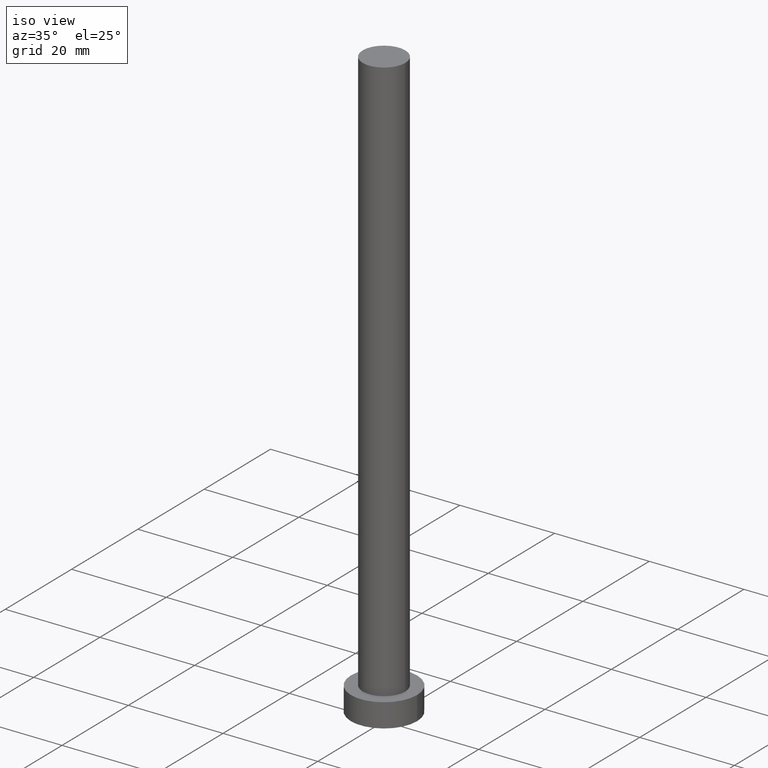
[diagram: clean part render]
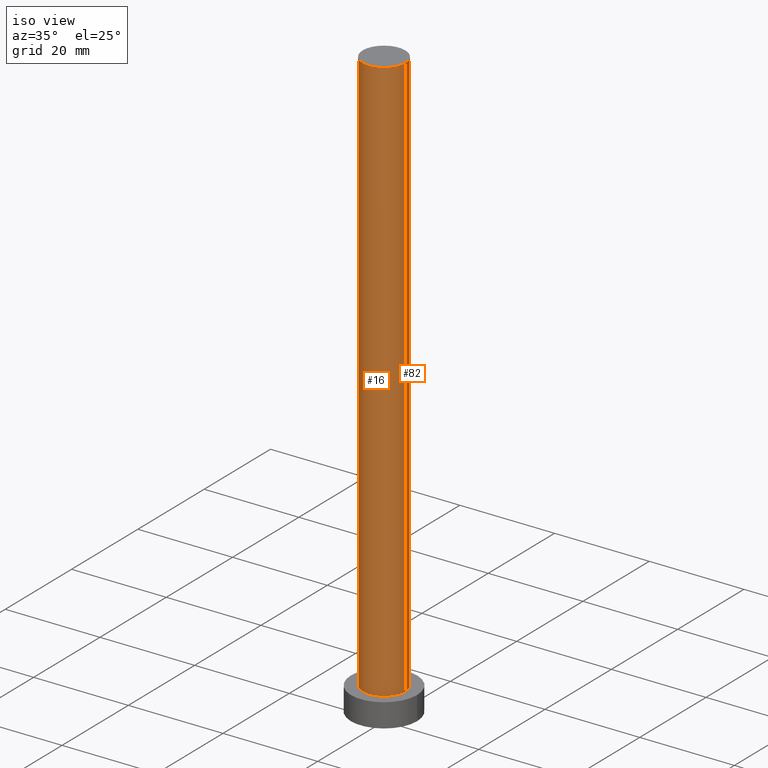
[diagram: same view with one multi-face feature highlighted, each face labeled with its STEP entity id]
A machine part, iso view. The highlighted faces form ONE feature: a constant-radius fillet chain: 2 tangent blend faces with common blend radius 4.5 mm. The faces share edges in the B-rep.
Their STEP definitions:
[1] entity #16 (Cylinder):
#16 = ADVANCED_FACE ( 'NONE', ( #126 ), #125, .T. ) ;
#26 = DIRECTION ( 'NONE',  ( -0.000000000000000000, -0.000000000000000000, -1.000000000000000000 ) ) ;
#42 = CARTESIAN_POINT ( 'NONE',  ( -4.500000000000000888, 0.000000000000000000, 5.000000000000000000 ) ) ;
#47 = CIRCLE ( 'NONE', #131, 4.500000000000000888 ) ;
#51 = DIRECTION ( 'NONE',  ( 1.000000000000000000, 0.000000000000000000, 0.000000000000000000 ) ) ;
#58 = VERTEX_POINT ( 'NONE', #168 ) ;
#60 = EDGE_CURVE ( 'NONE', #215, #78, #206, .T. ) ;
#71 = CARTESIAN_POINT ( 'NONE',  ( 0.000000000000000000, 0.000000000000000000, 125.0000000000000000 ) ) ;
#76 = VERTEX_POINT ( 'NONE', #42 ) ;
#78 = VERTEX_POINT ( 'NONE', #243 ) ;
#86 = CARTESIAN_POINT ( 'NONE',  ( 0.000000000000000000, 0.000000000000000000, 125.0000000000000000 ) ) ;
#87 = EDGE_CURVE ( 'NONE', #76, #78, #47, .T. ) ;
#107 = DIRECTION ( 'NONE',  ( 0.000000000000000000, 0.000000000000000000, 1.000000000000000000 ) ) ;
#124 = DIRECTION ( 'NONE',  ( -0.000000000000000000, -0.000000000000000000, -1.000000000000000000 ) ) ;
#125 = CYLINDRICAL_SURFACE ( 'NONE', #160, 4.500000000000000888 ) ;
#126 = FACE_OUTER_BOUND ( 'NONE', #140, .T. ) ;
#128 = CIRCLE ( 'NONE', #169, 4.500000000000000888 ) ;
#130 = CARTESIAN_POINT ( 'NONE',  ( -4.500000000000000888, 0.000000000000000000, 125.0000000000000000 ) ) ;
#131 = AXIS2_PLACEMENT_3D ( 'NONE', #144, #107, #188 ) ;
#140 = EDGE_LOOP ( 'NONE', ( #157, #254, #150, #181 ) ) ;
#144 = CARTESIAN_POINT ( 'NONE',  ( 0.000000000000000000, 0.000000000000000000, 5.000000000000000000 ) ) ;
#145 = DIRECTION ( 'NONE',  ( -1.000000000000000000, 0.000000000000000000, 0.000000000000000000 ) ) ;
#150 = ORIENTED_EDGE ( 'NONE', *, *, #180, .T. ) ;
#152 = DIRECTION ( 'NONE',  ( 0.000000000000000000, 0.000000000000000000, 1.000000000000000000 ) ) ;
#157 = ORIENTED_EDGE ( 'NONE', *, *, #60, .F. ) ;
#160 = AXIS2_PLACEMENT_3D ( 'NONE', #86, #26, #145 ) ;
#168 = CARTESIAN_POINT ( 'NONE',  ( -4.500000000000000888, 0.000000000000000000, 125.0000000000000000 ) ) ;
#169 = AXIS2_PLACEMENT_3D ( 'NONE', #71, #152, #51 ) ;
#175 = LINE ( 'NONE', #130, #247 ) ;
#180 = EDGE_CURVE ( 'NONE', #58, #76, #175, .T. ) ;
#181 = ORIENTED_EDGE ( 'NONE', *, *, #87, .T. ) ;
#188 = DIRECTION ( 'NONE',  ( 1.000000000000000000, 0.000000000000000000, 0.000000000000000000 ) ) ;
#206 = LINE ( 'NONE', #246, #245 ) ;
#210 = DIRECTION ( 'NONE',  ( -0.000000000000000000, -0.000000000000000000, -1.000000000000000000 ) ) ;
#215 = VERTEX_POINT ( 'NONE', #224 ) ;
#224 = CARTESIAN_POINT ( 'NONE',  ( 4.500000000000000888, 5.510910596163089556E-16, 125.0000000000000000 ) ) ;
#243 = CARTESIAN_POINT ( 'NONE',  ( 4.500000000000000888, 5.510910596163089556E-16, 5.000000000000000000 ) ) ;
#245 = VECTOR ( 'NONE', #124, 1000.000000000000000 ) ;
#246 = CARTESIAN_POINT ( 'NONE',  ( 4.500000000000000888, 5.510910596163089556E-16, 125.0000000000000000 ) ) ;
#247 = VECTOR ( 'NONE', #210, 1000.000000000000000 ) ;
#254 = ORIENTED_EDGE ( 'NONE', *, *, #255, .F. ) ;
#255 = EDGE_CURVE ( 'NONE', #58, #215, #128, .T. ) ;
[2] entity #82 (Cylinder):
#10 = DIRECTION ( 'NONE',  ( 1.000000000000000000, 0.000000000000000000, 0.000000000000000000 ) ) ;
#19 = ORIENTED_EDGE ( 'NONE', *, *, #60, .T. ) ;
#25 = CARTESIAN_POINT ( 'NONE',  ( 0.000000000000000000, 0.000000000000000000, 125.0000000000000000 ) ) ;
#42 = CARTESIAN_POINT ( 'NONE',  ( -4.500000000000000888, 0.000000000000000000, 5.000000000000000000 ) ) ;
#48 = DIRECTION ( 'NONE',  ( -0.000000000000000000, -0.000000000000000000, -1.000000000000000000 ) ) ;
#52 = DIRECTION ( 'NONE',  ( 0.000000000000000000, 0.000000000000000000, 1.000000000000000000 ) ) ;
#55 = CIRCLE ( 'NONE', #106, 4.500000000000000888 ) ;
#58 = VERTEX_POINT ( 'NONE', #168 ) ;
#60 = EDGE_CURVE ( 'NONE', #215, #78, #206, .T. ) ;
#63 = CYLINDRICAL_SURFACE ( 'NONE', #195, 4.500000000000000888 ) ;
#67 = CARTESIAN_POINT ( 'NONE',  ( 0.000000000000000000, 0.000000000000000000, 125.0000000000000000 ) ) ;
#76 = VERTEX_POINT ( 'NONE', #42 ) ;
#78 = VERTEX_POINT ( 'NONE', #243 ) ;
#82 = ADVANCED_FACE ( 'NONE', ( #122 ), #63, .T. ) ;
#103 = DIRECTION ( 'NONE',  ( 0.000000000000000000, 0.000000000000000000, 1.000000000000000000 ) ) ;
#106 = AXIS2_PLACEMENT_3D ( 'NONE', #187, #52, #10 ) ;
#113 = EDGE_CURVE ( 'NONE', #215, #58, #173, .T. ) ;
#118 = AXIS2_PLACEMENT_3D ( 'NONE', #25, #103, #242 ) ;
#120 = ORIENTED_EDGE ( 'NONE', *, *, #180, .F. ) ;
#122 = FACE_OUTER_BOUND ( 'NONE', #231, .T. ) ;
#124 = DIRECTION ( 'NONE',  ( -0.000000000000000000, -0.000000000000000000, -1.000000000000000000 ) ) ;
#130 = CARTESIAN_POINT ( 'NONE',  ( -4.500000000000000888, 0.000000000000000000, 125.0000000000000000 ) ) ;
#139 = EDGE_CURVE ( 'NONE', #78, #76, #55, .T. ) ;
#143 = ORIENTED_EDGE ( 'NONE', *, *, #139, .T. ) ;
#168 = CARTESIAN_POINT ( 'NONE',  ( -4.500000000000000888, 0.000000000000000000, 125.0000000000000000 ) ) ;
#173 = CIRCLE ( 'NONE', #118, 4.500000000000000888 ) ;
#175 = LINE ( 'NONE', #130, #247 ) ;
#180 = EDGE_CURVE ( 'NONE', #58, #76, #175, .T. ) ;
#187 = CARTESIAN_POINT ( 'NONE',  ( 0.000000000000000000, 0.000000000000000000, 5.000000000000000000 ) ) ;
#191 = DIRECTION ( 'NONE',  ( -1.000000000000000000, 0.000000000000000000, 0.000000000000000000 ) ) ;
#195 = AXIS2_PLACEMENT_3D ( 'NONE', #67, #48, #191 ) ;
#198 = ORIENTED_EDGE ( 'NONE', *, *, #113, .F. ) ;
#206 = LINE ( 'NONE', #246, #245 ) ;
#210 = DIRECTION ( 'NONE',  ( -0.000000000000000000, -0.000000000000000000, -1.000000000000000000 ) ) ;
#215 = VERTEX_POINT ( 'NONE', #224 ) ;
#224 = CARTESIAN_POINT ( 'NONE',  ( 4.500000000000000888, 5.510910596163089556E-16, 125.0000000000000000 ) ) ;
#231 = EDGE_LOOP ( 'NONE', ( #198, #19, #143, #120 ) ) ;
#242 = DIRECTION ( 'NONE',  ( 1.000000000000000000, 0.000000000000000000, 0.000000000000000000 ) ) ;
#243 = CARTESIAN_POINT ( 'NONE',  ( 4.500000000000000888, 5.510910596163089556E-16, 5.000000000000000000 ) ) ;
#245 = VECTOR ( 'NONE', #124, 1000.000000000000000 ) ;
#246 = CARTESIAN_POINT ( 'NONE',  ( 4.500000000000000888, 5.510910596163089556E-16, 125.0000000000000000 ) ) ;
#247 = VECTOR ( 'NONE', #210, 1000.000000000000000 ) ;